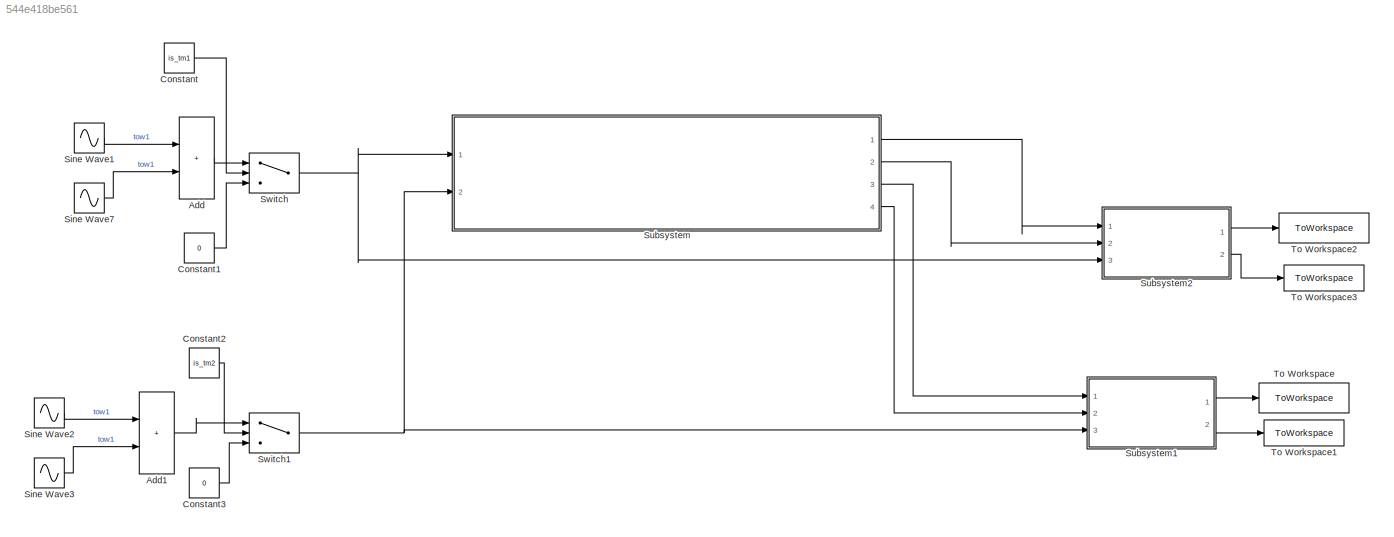
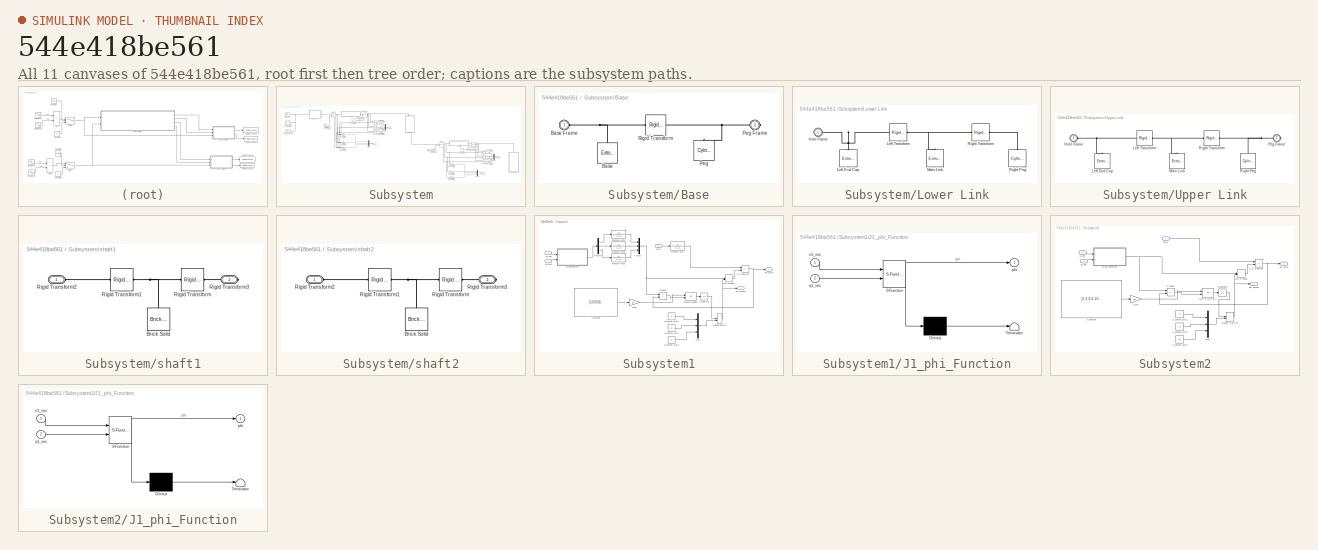
[diagram: thumbnail index - all 11 canvases of the model, root first then tree order]
MODEL slx_544e418be561
KIND model
CONFIG AbsTol = auto
CONFIG EnableMultiTasking = off
CONFIG FixedStep = auto
CONFIG MaxStep = auto
CONFIG MinStep = auto
CONFIG RelTol = 1e-3
CONFIG SampleTimeConstraint = Unconstrained
CONFIG SolverName = VariableStepAuto
CONFIG StartTime = 0.0
CONFIG StopTime = 10.0
BLOCK [Sum] Add
  IconShape = rectangular
  Ports = [2, 1]
BLOCK [Sum] Add1
  IconShape = rectangular
  Ports = [2, 1]
BLOCK [Constant] Constant
  Value = is_tm1
BLOCK [Constant] Constant1
  Value = 0
BLOCK [Constant] Constant2
  Value = is_tm2
BLOCK [Constant] Constant3
  Value = 0
BLOCK [Sin] Sine Wave1
  Frequency = 0.5
  Ports = [0, 1]
  SampleTime = 0
BLOCK [Sin] Sine Wave2
  Amplitude = 0.5
  Frequency = 0.5
  Ports = [0, 1]
  SampleTime = 0
BLOCK [Sin] Sine Wave3
  Amplitude = 0.25
  Frequency = 0.1
  Ports = [0, 1]
  SampleTime = 0
BLOCK [Sin] Sine Wave7
  Amplitude = 0.5
  Frequency = 0.1
  Ports = [0, 1]
  SampleTime = 0
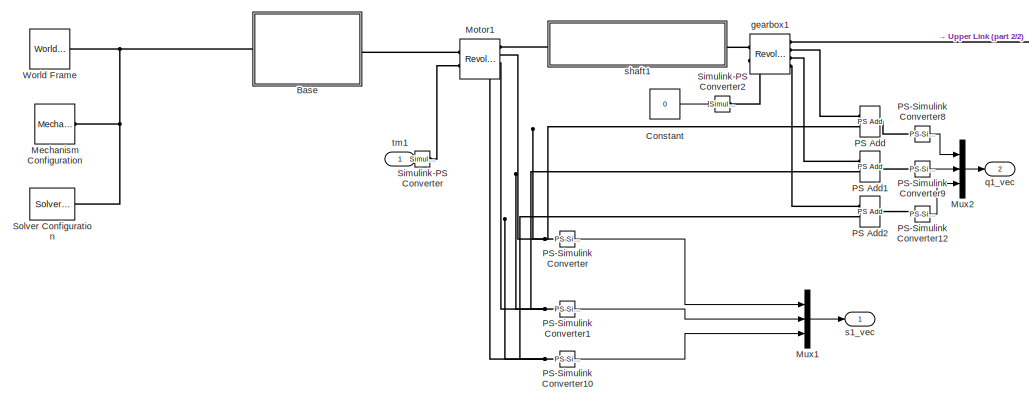
[diagram: Subsystem - part 1/2, top left region]
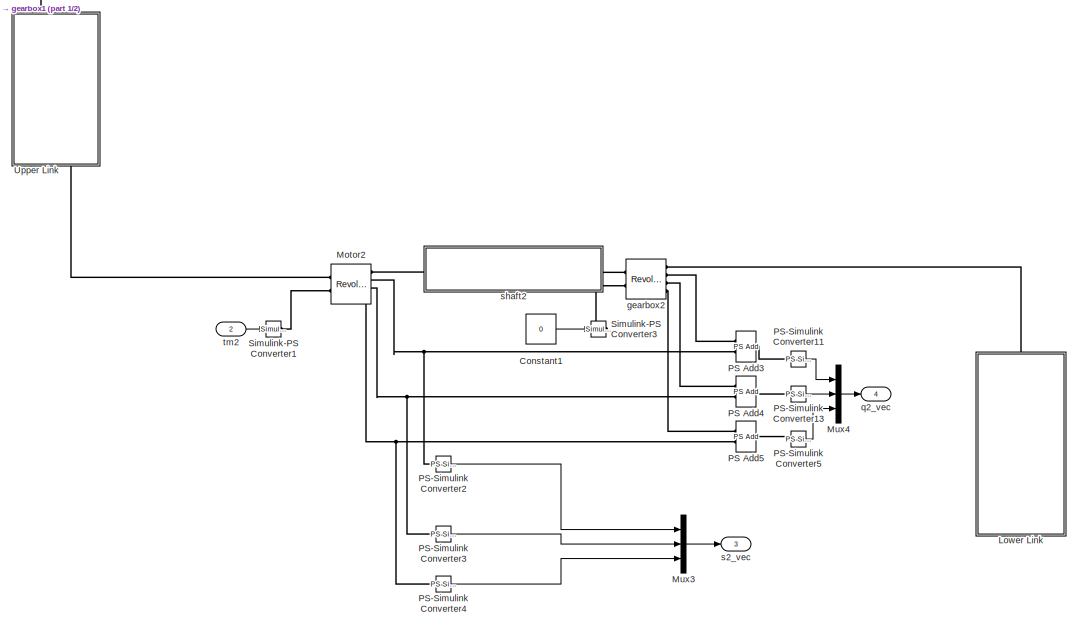
[diagram: Subsystem - part 2/2, right side, full height]
BLOCK [SubSystem] Subsystem
  Ports = [2, 4]
  RequestExecContextInheritance = off
BLOCK [SubSystem] Subsystem/Base
  Ports = [0, 0, 0, 0, 0, 1, 1]
  RequestExecContextInheritance = off
BLOCK [Reference] Subsystem/Base/Base  REF=sm_lib/Body Elements/Extruded Solid
  NameLocation = right
  Ports = [0, 0, 0, 0, 0, 0, 1]
  SourceBlock = sm_lib/Body Elements/Extruded Solid
  SourceProductName = Multibody
  SourceType = Extruded Solid
BLOCK [PMIOPort] Subsystem/Base/Base Frame
  Side = Left
BLOCK [Reference] Subsystem/Base/Peg  REF=sm_lib/Body Elements/Cylindrical Solid
  NameLocation = left
  Ports = [0, 0, 0, 0, 0, 0, 1]
  SourceBlock = sm_lib/Body Elements/Cylindrical Solid
  SourceProductName = Multibody
  SourceType = Cylindrical Solid
BLOCK [PMIOPort] Subsystem/Base/Peg Frame
  Port = 2
  Side = Right
BLOCK [Reference] Subsystem/Base/Rigid Transform  REF=sm_lib/Frames and
Transforms/Rigid
Transform
  Ports = [0, 0, 0, 0, 0, 1, 1]
  SourceBlock = sm_lib/Frames and\nTransforms/Rigid\nTransform
  SourceProductName = Multibody
  SourceType = Rigid\nTransform
BLOCK [Constant] Subsystem/Constant
  Value = 0
BLOCK [Constant] Subsystem/Constant1
  Value = 0
BLOCK [SubSystem] Subsystem/Lower Link
  NameLocation = right
  Ports = [0, 0, 0, 0, 0, 1]
  RequestExecContextInheritance = off
BLOCK [PMIOPort] Subsystem/Lower Link/Hole Frame
  Side = Left
BLOCK [Reference] Subsystem/Lower Link/Left End Cap  REF=sm_lib/Body Elements/Extruded Solid
  NameLocation = right
  Ports = [0, 0, 0, 0, 0, 0, 1]
  SourceBlock = sm_lib/Body Elements/Extruded Solid
  SourceProductName = Multibody
  SourceType = Extruded Solid
BLOCK [Reference] Subsystem/Lower Link/Left Transform  REF=sm_lib/Frames and
Transforms/Rigid
Transform
  Ports = [0, 0, 0, 0, 0, 1, 1]
  SourceBlock = sm_lib/Frames and\nTransforms/Rigid\nTransform
  SourceProductName = Multibody
  SourceType = Rigid\nTransform
BLOCK [Reference] Subsystem/Lower Link/Main Link  REF=sm_lib/Body Elements/Extruded Solid
  NameLocation = right
  Ports = [0, 0, 0, 0, 0, 0, 1]
  SourceBlock = sm_lib/Body Elements/Extruded Solid
  SourceProductName = Multibody
  SourceType = Extruded Solid
BLOCK [Reference] Subsystem/Lower Link/Right Peg  REF=sm_lib/Body Elements/Cylindrical Solid
  NameLocation = right
  Ports = [0, 0, 0, 0, 0, 0, 1]
  SourceBlock = sm_lib/Body Elements/Cylindrical Solid
  SourceProductName = Multibody
  SourceType = Cylindrical Solid
BLOCK [Reference] Subsystem/Lower Link/Right Transform  REF=sm_lib/Frames and
Transforms/Rigid
Transform
  Ports = [0, 0, 0, 0, 0, 1, 1]
  SourceBlock = sm_lib/Frames and\nTransforms/Rigid\nTransform
  SourceProductName = Multibody
  SourceType = Rigid\nTransform
BLOCK [Reference] Subsystem/Mechanism Configuration  REF=sm_lib/Utilities/Mechanism
Configuration
  Ports = [0, 0, 0, 0, 0, 0, 1]
  SourceBlock = sm_lib/Utilities/Mechanism\nConfiguration
  SourceProductName = Multibody
  SourceType = Mechanism\nConfiguration
BLOCK [Reference] Subsystem/Motor1  REF=sm_lib/Joints/Revolute Joint
  Ports = [0, 0, 0, 0, 0, 2, 4]
  SourceBlock = sm_lib/Joints/Revolute Joint
  SourceProductBaseCode = MS
  SourceType = Revolute Joint
BLOCK [Reference] Subsystem/Motor2  REF=sm_lib/Joints/Revolute Joint
  Ports = [0, 0, 0, 0, 0, 2, 4]
  SourceBlock = sm_lib/Joints/Revolute Joint
  SourceProductBaseCode = MS
  SourceType = Revolute Joint
BLOCK [Mux] Subsystem/Mux1
  DisplayOption = bar
  Inputs = 3
  Ports = [3, 1]
BLOCK [Mux] Subsystem/Mux2
  DisplayOption = bar
  Inputs = 3
  Ports = [3, 1]
BLOCK [Mux] Subsystem/Mux3
  DisplayOption = bar
  Inputs = 3
  Ports = [3, 1]
BLOCK [Mux] Subsystem/Mux4
  DisplayOption = bar
  Inputs = 3
  Ports = [3, 1]
BLOCK [Reference] Subsystem/PS Add  REF=fl_lib/Physical Signals/Functions/PS Add
  Ports = [0, 0, 0, 0, 0, 2, 1]
  SourceBlock = fl_lib/Physical Signals/Functions/PS Add
  SourceProductBaseCode = SS
  SourceType = PS Add
BLOCK [Reference] Subsystem/PS Add1  REF=fl_lib/Physical Signals/Functions/PS Add
  Ports = [0, 0, 0, 0, 0, 2, 1]
  SourceBlock = fl_lib/Physical Signals/Functions/PS Add
  SourceProductBaseCode = SS
  SourceType = PS Add
BLOCK [Reference] Subsystem/PS Add2  REF=fl_lib/Physical Signals/Functions/PS Add
  Ports = [0, 0, 0, 0, 0, 2, 1]
  SourceBlock = fl_lib/Physical Signals/Functions/PS Add
  SourceProductBaseCode = SS
  SourceType = PS Add
BLOCK [Reference] Subsystem/PS Add3  REF=fl_lib/Physical Signals/Functions/PS Add
  Ports = [0, 0, 0, 0, 0, 2, 1]
  SourceBlock = fl_lib/Physical Signals/Functions/PS Add
  SourceProductBaseCode = SS
  SourceType = PS Add
BLOCK [Reference] Subsystem/PS Add4  REF=fl_lib/Physical Signals/Functions/PS Add
  Ports = [0, 0, 0, 0, 0, 2, 1]
  SourceBlock = fl_lib/Physical Signals/Functions/PS Add
  SourceProductBaseCode = SS
  SourceType = PS Add
BLOCK [Reference] Subsystem/PS Add5  REF=fl_lib/Physical Signals/Functions/PS Add
  Ports = [0, 0, 0, 0, 0, 2, 1]
  SourceBlock = fl_lib/Physical Signals/Functions/PS Add
  SourceProductBaseCode = SS
  SourceType = PS Add
BLOCK [Reference] Subsystem/PS-Simulink Converter  REF=nesl_utility/PS-Simulink
Converter
  Ports = [0, 1, 0, 0, 0, 1]
  SourceBlock = nesl_utility/PS-Simulink\nConverter
  SourceProductBaseCode = SS
  SourceType = PS-Simulink\nConverter
BLOCK [Reference] Subsystem/PS-Simulink Converter1  REF=nesl_utility/PS-Simulink
Converter
  Ports = [0, 1, 0, 0, 0, 1]
  SourceBlock = nesl_utility/PS-Simulink\nConverter
  SourceProductBaseCode = SS
  SourceType = PS-Simulink\nConverter
BLOCK [Reference] Subsystem/PS-Simulink Converter10  REF=nesl_utility/PS-Simulink
Converter
  NameLocation = left
  Ports = [0, 1, 0, 0, 0, 1]
  SourceBlock = nesl_utility/PS-Simulink\nConverter
  SourceProductBaseCode = SS
  SourceType = PS-Simulink\nConverter
BLOCK [Reference] Subsystem/PS-Simulink Converter11  REF=nesl_utility/PS-Simulink
Converter
  Ports = [0, 1, 0, 0, 0, 1]
  SourceBlock = nesl_utility/PS-Simulink\nConverter
  SourceProductBaseCode = SS
  SourceType = PS-Simulink\nConverter
BLOCK [Reference] Subsystem/PS-Simulink Converter12  REF=nesl_utility/PS-Simulink
Converter
  Ports = [0, 1, 0, 0, 0, 1]
  SourceBlock = nesl_utility/PS-Simulink\nConverter
  SourceProductBaseCode = SS
  SourceType = PS-Simulink\nConverter
BLOCK [Reference] Subsystem/PS-Simulink Converter13  REF=nesl_utility/PS-Simulink
Converter
  Ports = [0, 1, 0, 0, 0, 1]
  SourceBlock = nesl_utility/PS-Simulink\nConverter
  SourceProductBaseCode = SS
  SourceType = PS-Simulink\nConverter
BLOCK [Reference] Subsystem/PS-Simulink Converter2  REF=nesl_utility/PS-Simulink
Converter
  Ports = [0, 1, 0, 0, 0, 1]
  SourceBlock = nesl_utility/PS-Simulink\nConverter
  SourceProductBaseCode = SS
  SourceType = PS-Simulink\nConverter
BLOCK [Reference] Subsystem/PS-Simulink Converter3  REF=nesl_utility/PS-Simulink
Converter
  Ports = [0, 1, 0, 0, 0, 1]
  SourceBlock = nesl_utility/PS-Simulink\nConverter
  SourceProductBaseCode = SS
  SourceType = PS-Simulink\nConverter
BLOCK [Reference] Subsystem/PS-Simulink Converter4  REF=nesl_utility/PS-Simulink
Converter
  NameLocation = left
  Ports = [0, 1, 0, 0, 0, 1]
  SourceBlock = nesl_utility/PS-Simulink\nConverter
  SourceProductBaseCode = SS
  SourceType = PS-Simulink\nConverter
BLOCK [Reference] Subsystem/PS-Simulink Converter5  REF=nesl_utility/PS-Simulink
Converter
  Ports = [0, 1, 0, 0, 0, 1]
  SourceBlock = nesl_utility/PS-Simulink\nConverter
  SourceProductBaseCode = SS
  SourceType = PS-Simulink\nConverter
BLOCK [Reference] Subsystem/PS-Simulink Converter8  REF=nesl_utility/PS-Simulink
Converter
  Ports = [0, 1, 0, 0, 0, 1]
  SourceBlock = nesl_utility/PS-Simulink\nConverter
  SourceProductBaseCode = SS
  SourceType = PS-Simulink\nConverter
BLOCK [Reference] Subsystem/PS-Simulink Converter9  REF=nesl_utility/PS-Simulink
Converter
  Ports = [0, 1, 0, 0, 0, 1]
  SourceBlock = nesl_utility/PS-Simulink\nConverter
  SourceProductBaseCode = SS
  SourceType = PS-Simulink\nConverter
BLOCK [Reference] Subsystem/Simulink-PS Converter  REF=nesl_utility/Simulink-PS
Converter
  Ports = [1, 0, 0, 0, 0, 0, 1]
  SourceBlock = nesl_utility/Simulink-PS\nConverter
  SourceProductBaseCode = SS
  SourceType = Simulink-PS\nConverter
BLOCK [Reference] Subsystem/Simulink-PS Converter1  REF=nesl_utility/Simulink-PS
Converter
  Ports = [1, 0, 0, 0, 0, 0, 1]
  SourceBlock = nesl_utility/Simulink-PS\nConverter
  SourceProductBaseCode = SS
  SourceType = Simulink-PS\nConverter
BLOCK [Reference] Subsystem/Simulink-PS Converter2  REF=nesl_utility/Simulink-PS
Converter
  Ports = [1, 0, 0, 0, 0, 0, 1]
  SourceBlock = nesl_utility/Simulink-PS\nConverter
  SourceProductBaseCode = SS
  SourceType = Simulink-PS\nConverter
BLOCK [Reference] Subsystem/Simulink-PS Converter3  REF=nesl_utility/Simulink-PS
Converter
  Ports = [1, 0, 0, 0, 0, 0, 1]
  SourceBlock = nesl_utility/Simulink-PS\nConverter
  SourceProductBaseCode = SS
  SourceType = Simulink-PS\nConverter
BLOCK [Reference] Subsystem/Solver Configuration  REF=nesl_utility/Solver
Configuration
  Ports = [0, 0, 0, 0, 0, 0, 1]
  SourceBlock = nesl_utility/Solver\nConfiguration
  SourceProductName = Utilities
  SourceType = Solver\nConfiguration
BLOCK [SubSystem] Subsystem/Upper Link
  NameLocation = right
  Ports = [0, 0, 0, 0, 0, 1, 1]
  RequestExecContextInheritance = off
BLOCK [PMIOPort] Subsystem/Upper Link/Hole Frame
  Side = Left
BLOCK [Reference] Subsystem/Upper Link/Left End Cap  REF=sm_lib/Body Elements/Extruded Solid
  NameLocation = right
  Ports = [0, 0, 0, 0, 0, 0, 1]
  SourceBlock = sm_lib/Body Elements/Extruded Solid
  SourceProductName = Multibody
  SourceType = Extruded Solid
BLOCK [Reference] Subsystem/Upper Link/Left Transform  REF=sm_lib/Frames and
Transforms/Rigid
Transform
  Ports = [0, 0, 0, 0, 0, 1, 1]
  SourceBlock = sm_lib/Frames and\nTransforms/Rigid\nTransform
  SourceProductName = Multibody
  SourceType = Rigid\nTransform
BLOCK [Reference] Subsystem/Upper Link/Main Link  REF=sm_lib/Body Elements/Extruded Solid
  NameLocation = right
  Ports = [0, 0, 0, 0, 0, 0, 1]
  SourceBlock = sm_lib/Body Elements/Extruded Solid
  SourceProductName = Multibody
  SourceType = Extruded Solid
BLOCK [PMIOPort] Subsystem/Upper Link/Peg Frame
  Port = 2
  Side = Right
BLOCK [Reference] Subsystem/Upper Link/Right Peg  REF=sm_lib/Body Elements/Cylindrical Solid
  NameLocation = right
  Ports = [0, 0, 0, 0, 0, 0, 1]
  SourceBlock = sm_lib/Body Elements/Cylindrical Solid
  SourceProductName = Multibody
  SourceType = Cylindrical Solid
BLOCK [Reference] Subsystem/Upper Link/Right Transform  REF=sm_lib/Frames and
Transforms/Rigid
Transform
  Ports = [0, 0, 0, 0, 0, 1, 1]
  SourceBlock = sm_lib/Frames and\nTransforms/Rigid\nTransform
  SourceProductName = Multibody
  SourceType = Rigid\nTransform
BLOCK [Reference] Subsystem/World Frame  REF=sm_lib/Frames and
Transforms/World Frame
  Ports = [0, 0, 0, 0, 0, 0, 1]
  SourceBlock = sm_lib/Frames and\nTransforms/World Frame
  SourceProductName = Multibody
  SourceType = World Frame
BLOCK [Reference] Subsystem/gearbox1  REF=sm_lib/Joints/Revolute Joint
  Ports = [0, 0, 0, 0, 0, 2, 4]
  SourceBlock = sm_lib/Joints/Revolute Joint
  SourceProductBaseCode = MS
  SourceType = Revolute Joint
BLOCK [Reference] Subsystem/gearbox2  REF=sm_lib/Joints/Revolute Joint
  Ports = [0, 0, 0, 0, 0, 2, 4]
  SourceBlock = sm_lib/Joints/Revolute Joint
  SourceProductBaseCode = MS
  SourceType = Revolute Joint
BLOCK [Outport] Subsystem/q1_vec
  Port = 2
BLOCK [Outport] Subsystem/q2_vec
  Port = 4
BLOCK [Outport] Subsystem/s1_vec
BLOCK [Outport] Subsystem/s2_vec
  Port = 3
BLOCK [SubSystem] Subsystem/shaft1
  Ports = [0, 0, 0, 0, 0, 1, 1]
  RequestExecContextInheritance = off
BLOCK [Reference] Subsystem/shaft1/Brick Solid  REF=sm_lib/Body Elements/Brick Solid
  Ports = [0, 0, 0, 0, 0, 0, 1]
  SourceBlock = sm_lib/Body Elements/Brick Solid
  SourceProductBaseCode = MS
  SourceType = Brick Solid
BLOCK [Reference] Subsystem/shaft1/Rigid Transform  REF=sm_lib/Frames and
Transforms/Rigid
Transform
  Ports = [0, 0, 0, 0, 0, 1, 1]
  SourceBlock = sm_lib/Frames and\nTransforms/Rigid\nTransform
  SourceProductBaseCode = MS
  SourceType = Rigid\nTransform
BLOCK [Reference] Subsystem/shaft1/Rigid Transform1  REF=sm_lib/Frames and
Transforms/Rigid
Transform
  Ports = [0, 0, 0, 0, 0, 1, 1]
  SourceBlock = sm_lib/Frames and\nTransforms/Rigid\nTransform
  SourceProductBaseCode = MS
  SourceType = Rigid\nTransform
BLOCK [PMIOPort] Subsystem/shaft1/Rigid Transform2
  Side = Left
BLOCK [PMIOPort] Subsystem/shaft1/Rigid Transform3
  Port = 2
  Side = Right
BLOCK [SubSystem] Subsystem/shaft2
  Ports = [0, 0, 0, 0, 0, 1, 1]
  RequestExecContextInheritance = off
BLOCK [Reference] Subsystem/shaft2/Brick Solid  REF=sm_lib/Body Elements/Brick Solid
  Ports = [0, 0, 0, 0, 0, 0, 1]
  SourceBlock = sm_lib/Body Elements/Brick Solid
  SourceProductBaseCode = MS
  SourceType = Brick Solid
BLOCK [Reference] Subsystem/shaft2/Rigid Transform  REF=sm_lib/Frames and
Transforms/Rigid
Transform
  Ports = [0, 0, 0, 0, 0, 1, 1]
  SourceBlock = sm_lib/Frames and\nTransforms/Rigid\nTransform
  SourceProductBaseCode = MS
  SourceType = Rigid\nTransform
BLOCK [Reference] Subsystem/shaft2/Rigid Transform1  REF=sm_lib/Frames and
Transforms/Rigid
Transform
  Ports = [0, 0, 0, 0, 0, 1, 1]
  SourceBlock = sm_lib/Frames and\nTransforms/Rigid\nTransform
  SourceProductBaseCode = MS
  SourceType = Rigid\nTransform
BLOCK [PMIOPort] Subsystem/shaft2/Rigid Transform2
  Side = Left
BLOCK [PMIOPort] Subsystem/shaft2/Rigid Transform3
  Port = 2
  Side = Right
BLOCK [Inport] Subsystem/tm1
BLOCK [Inport] Subsystem/tm2
  Port = 2
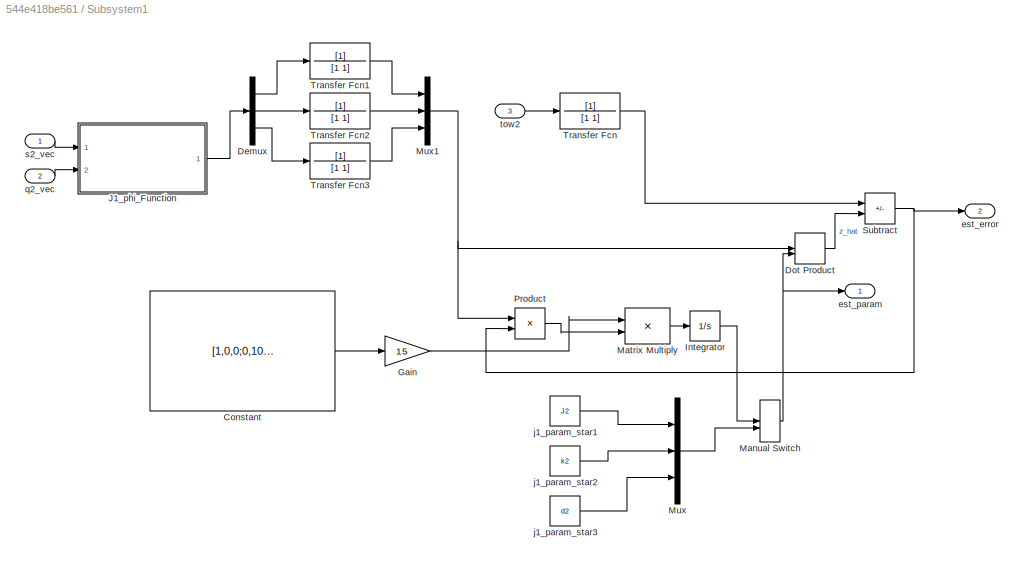
BLOCK [SubSystem] Subsystem1
  Ports = [3, 2]
  RequestExecContextInheritance = off
BLOCK [Constant] Subsystem1/Constant
  Value = [1,0,0;0,100,0;0,0,0.01]
BLOCK [Demux] Subsystem1/Demux
  Outputs = 3
  Ports = [1, 3]
BLOCK [DotProduct] Subsystem1/Dot Product
  OutDataTypeStr = Inherit: Inherit via internal rule
BLOCK [Gain] Subsystem1/Gain
  Gain = 15
BLOCK [Integrator] Subsystem1/Integrator
  InitialCondition = [0.0001;0.0001;0.0001]
  Ports = [1, 1]
BLOCK [SubSystem] Subsystem1/J1_phi_Function
  ErrorFcn = Stateflow.Translate.translate
  PermitHierarchicalResolution = ExplicitOnly
  Ports = [2, 1]
  RequestExecContextInheritance = off
  SFBlockType = MATLAB Function
  TreatAsAtomicUnit = on
BLOCK [Demux] Subsystem1/J1_phi_Function/ Demux 
  Outputs = 1
  Ports = [1, 1]
BLOCK [S-Function] Subsystem1/J1_phi_Function/ SFunction 
  EnableBusSupport = on
  FunctionName = sf_sfun
  PortCounts = [2 2]
  Ports = [2, 2]
  SFcnIsStateOwnerBlock = off
  SFunctionDeploymentMode = off
  Tag = Stateflow S-Function 3
BLOCK [Terminator] Subsystem1/J1_phi_Function/ Terminator 
BLOCK [Outport] Subsystem1/J1_phi_Function/phi
BLOCK [Inport] Subsystem1/J1_phi_Function/q1_vec
  Port = 2
BLOCK [Inport] Subsystem1/J1_phi_Function/s1_vec
BLOCK [ManualSwitch] Subsystem1/Manual Switch
BLOCK [Product] Subsystem1/Matrix Multiply
  Multiplication = Matrix(*)
  Ports = [2, 1]
BLOCK [Mux] Subsystem1/Mux
  DisplayOption = bar
  Inputs = 3
  Ports = [3, 1]
BLOCK [Mux] Subsystem1/Mux1
  DisplayOption = bar
  Inputs = 3
  Ports = [3, 1]
BLOCK [Product] Subsystem1/Product
  Ports = [2, 1]
BLOCK [Sum] Subsystem1/Subtract
  IconShape = rectangular
  Inputs = +-
  Ports = [2, 1]
BLOCK [TransferFcn] Subsystem1/Transfer Fcn
  Denominator = [1 1]
BLOCK [TransferFcn] Subsystem1/Transfer Fcn1
  Denominator = [1 1]
BLOCK [TransferFcn] Subsystem1/Transfer Fcn2
  Denominator = [1 1]
BLOCK [TransferFcn] Subsystem1/Transfer Fcn3
  Denominator = [1 1]
BLOCK [Outport] Subsystem1/est_error
  Port = 2
BLOCK [Outport] Subsystem1/est_param
BLOCK [Constant] Subsystem1/j1_param_star1
  Value = J2
BLOCK [Constant] Subsystem1/j1_param_star2
  Value = k2
BLOCK [Constant] Subsystem1/j1_param_star3
  Value = d2
BLOCK [Inport] Subsystem1/q2_vec
  Port = 2
BLOCK [Inport] Subsystem1/s2_vec
BLOCK [Inport] Subsystem1/tow2
  Port = 3
BLOCK [SubSystem] Subsystem2
  Ports = [3, 2]
  RequestExecContextInheritance = off
BLOCK [Constant] Subsystem2/Constant
  Value = [1,0,0;0,100,0;0,0,0.1]
BLOCK [DotProduct] Subsystem2/Dot Product
  OutDataTypeStr = Inherit: Inherit via internal rule
BLOCK [Gain] Subsystem2/Gain
  Gain = 20
BLOCK [Integrator] Subsystem2/Integrator
  InitialCondition = [0;0;0]
  Ports = [1, 1]
BLOCK [SubSystem] Subsystem2/J1_phi_Function
  ErrorFcn = Stateflow.Translate.translate
  PermitHierarchicalResolution = ExplicitOnly
  Ports = [2, 1]
  RequestExecContextInheritance = off
  SFBlockType = MATLAB Function
  TreatAsAtomicUnit = on
BLOCK [Demux] Subsystem2/J1_phi_Function/ Demux 
  Outputs = 1
  Ports = [1, 1]
BLOCK [S-Function] Subsystem2/J1_phi_Function/ SFunction 
  EnableBusSupport = on
  FunctionName = sf_sfun
  PortCounts = [2 2]
  Ports = [2, 2]
  SFcnIsStateOwnerBlock = off
  SFunctionDeploymentMode = off
  Tag = Stateflow S-Function 4
BLOCK [Terminator] Subsystem2/J1_phi_Function/ Terminator 
BLOCK [Outport] Subsystem2/J1_phi_Function/phi
BLOCK [Inport] Subsystem2/J1_phi_Function/q1_vec
  Port = 2
BLOCK [Inport] Subsystem2/J1_phi_Function/s1_vec
BLOCK [ManualSwitch] Subsystem2/Manual Switch
BLOCK [Product] Subsystem2/Matrix Multiply
  Multiplication = Matrix(*)
  Ports = [2, 1]
BLOCK [Mux] Subsystem2/Mux
  DisplayOption = bar
  Inputs = 3
  Ports = [3, 1]
BLOCK [Product] Subsystem2/Product
  Ports = [2, 1]
BLOCK [Sum] Subsystem2/Subtract
  IconShape = rectangular
  Inputs = +-
  Ports = [2, 1]
BLOCK [Outport] Subsystem2/est_error
  Port = 2
BLOCK [Outport] Subsystem2/est_param
BLOCK [Constant] Subsystem2/j1_param_star1
  Value = J1
BLOCK [Constant] Subsystem2/j1_param_star2
  Value = k1
BLOCK [Constant] Subsystem2/j1_param_star3
  Value = d1
BLOCK [Inport] Subsystem2/q1_vec
  Port = 2
BLOCK [Inport] Subsystem2/s1_vec
BLOCK [Inport] Subsystem2/tow1
  Port = 3
BLOCK [Switch] Switch
  Criteria = u2 > Threshold
  InputSameDT = off
  SaturateOnIntegerOverflow = off
BLOCK [Switch] Switch1
  Criteria = u2 > Threshold
  InputSameDT = off
  SaturateOnIntegerOverflow = off
BLOCK [ToWorkspace] To Workspace
  FixptAsFi = on
  MaxDataPoints = inf
  Ports = [1]
  SampleTime = -1
  SaveFormat = Timeseries
  VariableName = J2_est_param
BLOCK [ToWorkspace] To Workspace1
  FixptAsFi = on
  MaxDataPoints = inf
  Ports = [1]
  SampleTime = -1
  SaveFormat = Timeseries
  VariableName = J2_est_error
BLOCK [ToWorkspace] To Workspace2
  FixptAsFi = on
  MaxDataPoints = inf
  Ports = [1]
  SampleTime = -1
  SaveFormat = Timeseries
  VariableName = J1_est_param
BLOCK [ToWorkspace] To Workspace3
  FixptAsFi = on
  MaxDataPoints = inf
  Ports = [1]
  SampleTime = -1
  SaveFormat = Timeseries
  VariableName = J1_est_error
LINE Add1:1 -> Switch1:1
LINE Add:1 -> Switch:1
LINE Constant1:1 -> Switch:3
LINE Constant2:1 -> Switch1:2
LINE Constant3:1 -> Switch1:3
LINE Constant:1 -> Switch:2
LINE Sine Wave1:1 -> Add:1
LINE Sine Wave2:1 -> Add1:1
LINE Sine Wave3:1 -> Add1:2
LINE Sine Wave7:1 -> Add:2
LINE Subsystem/Constant1:1 -> Subsystem/Simulink-PS Converter3:1
LINE Subsystem/Constant:1 -> Subsystem/Simulink-PS Converter2:1
LINE Subsystem/Mux1:1 -> Subsystem/s1_vec:1
LINE Subsystem/Mux2:1 -> Subsystem/q1_vec:1
LINE Subsystem/Mux3:1 -> Subsystem/s2_vec:1
LINE Subsystem/Mux4:1 -> Subsystem/q2_vec:1
LINE Subsystem/PS-Simulink Converter10:1 -> Subsystem/Mux1:3
LINE Subsystem/PS-Simulink Converter11:1 -> Subsystem/Mux4:1
LINE Subsystem/PS-Simulink Converter12:1 -> Subsystem/Mux2:3
LINE Subsystem/PS-Simulink Converter13:1 -> Subsystem/Mux4:2
LINE Subsystem/PS-Simulink Converter1:1 -> Subsystem/Mux1:2
LINE Subsystem/PS-Simulink Converter2:1 -> Subsystem/Mux3:1
LINE Subsystem/PS-Simulink Converter3:1 -> Subsystem/Mux3:2
LINE Subsystem/PS-Simulink Converter4:1 -> Subsystem/Mux3:3
LINE Subsystem/PS-Simulink Converter5:1 -> Subsystem/Mux4:3
LINE Subsystem/PS-Simulink Converter8:1 -> Subsystem/Mux2:1
LINE Subsystem/PS-Simulink Converter9:1 -> Subsystem/Mux2:2
LINE Subsystem/PS-Simulink Converter:1 -> Subsystem/Mux1:1
LINE Subsystem/tm1:1 -> Subsystem/Simulink-PS Converter:1
LINE Subsystem/tm2:1 -> Subsystem/Simulink-PS Converter1:1
LINE Subsystem1/Constant:1 -> Subsystem1/Gain:1
LINE Subsystem1/Demux:1 -> Subsystem1/Transfer Fcn1:1
LINE Subsystem1/Demux:2 -> Subsystem1/Transfer Fcn2:1
LINE Subsystem1/Demux:3 -> Subsystem1/Transfer Fcn3:1
LINE Subsystem1/Dot Product:1 -> Subsystem1/Subtract:2
LINE Subsystem1/Gain:1 -> Subsystem1/Matrix Multiply:1
LINE Subsystem1/Integrator:1 -> Subsystem1/Manual Switch:1
LINE Subsystem1/J1_phi_Function:1 -> Subsystem1/Demux:1
NET Subsystem1/Manual Switch:1 -> Subsystem1/Dot Product:2, Subsystem1/est_param:1
LINE Subsystem1/Matrix Multiply:1 -> Subsystem1/Integrator:1
NET Subsystem1/Mux1:1 -> Subsystem1/Dot Product:1, Subsystem1/Product:1
LINE Subsystem1/Mux:1 -> Subsystem1/Manual Switch:2
LINE Subsystem1/Product:1 -> Subsystem1/Matrix Multiply:2
NET Subsystem1/Subtract:1 -> Subsystem1/Product:2, Subsystem1/est_error:1
LINE Subsystem1/Transfer Fcn1:1 -> Subsystem1/Mux1:1
LINE Subsystem1/Transfer Fcn2:1 -> Subsystem1/Mux1:2
LINE Subsystem1/Transfer Fcn3:1 -> Subsystem1/Mux1:3
LINE Subsystem1/Transfer Fcn:1 -> Subsystem1/Subtract:1
LINE Subsystem1/j1_param_star1:1 -> Subsystem1/Mux:1
LINE Subsystem1/j1_param_star2:1 -> Subsystem1/Mux:2
LINE Subsystem1/j1_param_star3:1 -> Subsystem1/Mux:3
LINE Subsystem1/q2_vec:1 -> Subsystem1/J1_phi_Function:2
LINE Subsystem1/s2_vec:1 -> Subsystem1/J1_phi_Function:1
LINE Subsystem1/tow2:1 -> Subsystem1/Transfer Fcn:1
LINE Subsystem1:1 -> To Workspace:1
LINE Subsystem1:2 -> To Workspace1:1
LINE Subsystem2/Constant:1 -> Subsystem2/Gain:1
LINE Subsystem2/Dot Product:1 -> Subsystem2/Subtract:2
LINE Subsystem2/Gain:1 -> Subsystem2/Matrix Multiply:1
LINE Subsystem2/Integrator:1 -> Subsystem2/Manual Switch:1
NET Subsystem2/J1_phi_Function:1 -> Subsystem2/Dot Product:1, Subsystem2/Product:1
NET Subsystem2/Manual Switch:1 -> Subsystem2/Dot Product:2, Subsystem2/est_param:1
LINE Subsystem2/Matrix Multiply:1 -> Subsystem2/Integrator:1
LINE Subsystem2/Mux:1 -> Subsystem2/Manual Switch:2
LINE Subsystem2/Product:1 -> Subsystem2/Matrix Multiply:2
NET Subsystem2/Subtract:1 -> Subsystem2/Product:2, Subsystem2/est_error:1
LINE Subsystem2/j1_param_star1:1 -> Subsystem2/Mux:1
LINE Subsystem2/j1_param_star2:1 -> Subsystem2/Mux:2
LINE Subsystem2/j1_param_star3:1 -> Subsystem2/Mux:3
LINE Subsystem2/q1_vec:1 -> Subsystem2/J1_phi_Function:2
LINE Subsystem2/s1_vec:1 -> Subsystem2/J1_phi_Function:1
LINE Subsystem2/tow1:1 -> Subsystem2/Subtract:1
LINE Subsystem2:1 -> To Workspace2:1
LINE Subsystem2:2 -> To Workspace3:1
LINE Subsystem:1 -> Subsystem2:1
LINE Subsystem:2 -> Subsystem2:2
LINE Subsystem:3 -> Subsystem1:1
LINE Subsystem:4 -> Subsystem1:2
NET Switch1:1 -> Subsystem1:3, Subsystem:2
NET Switch:1 -> Subsystem2:3, Subsystem:1
PNET net1: Subsystem/Base/Base Frame:RConn1 -- Subsystem/Base/Base:RConn1 -- Subsystem/Base/Rigid Transform:LConn1
PNET net2: Subsystem/Base/Peg Frame:RConn1 -- Subsystem/Base/Peg:RConn1 -- Subsystem/Base/Rigid Transform:RConn1
PNET net3: Subsystem/Base:LConn1 -- Subsystem/Mechanism Configuration:RConn1 -- Subsystem/Solver Configuration:RConn1 -- Subsystem/World Frame:RConn1
PLINE Subsystem/Base:RConn1 -- Subsystem/Motor1:LConn1
PNET net4: Subsystem/Lower Link/Hole Frame:RConn1 -- Subsystem/Lower Link/Left End Cap:RConn1 -- Subsystem/Lower Link/Left Transform:RConn1
PNET net5: Subsystem/Lower Link/Left Transform:LConn1 -- Subsystem/Lower Link/Main Link:RConn1 -- Subsystem/Lower Link/Right Transform:LConn1
PLINE Subsystem/Lower Link/Right Peg:RConn1 -- Subsystem/Lower Link/Right Transform:RConn1
PLINE Subsystem/Lower Link:LConn1 -- Subsystem/gearbox2:RConn1
PLINE Subsystem/Motor1:LConn2 -- Subsystem/Simulink-PS Converter:RConn1
PLINE Subsystem/Motor1:RConn1 -- Subsystem/shaft1:LConn1
PNET net6: Subsystem/Motor1:RConn2 -- Subsystem/PS Add:LConn2 -- Subsystem/PS-Simulink Converter:LConn1
PNET net7: Subsystem/Motor1:RConn3 -- Subsystem/PS Add1:LConn2 -- Subsystem/PS-Simulink Converter1:LConn1
PNET net8: Subsystem/Motor1:RConn4 -- Subsystem/PS Add2:LConn2 -- Subsystem/PS-Simulink Converter10:LConn1
PLINE Subsystem/Motor2:LConn1 -- Subsystem/Upper Link:RConn1
PLINE Subsystem/Motor2:LConn2 -- Subsystem/Simulink-PS Converter1:RConn1
PLINE Subsystem/Motor2:RConn1 -- Subsystem/shaft2:LConn1
PNET net9: Subsystem/Motor2:RConn2 -- Subsystem/PS Add3:LConn2 -- Subsystem/PS-Simulink Converter2:LConn1
PNET net10: Subsystem/Motor2:RConn3 -- Subsystem/PS Add4:LConn2 -- Subsystem/PS-Simulink Converter3:LConn1
PNET net11: Subsystem/Motor2:RConn4 -- Subsystem/PS Add5:LConn2 -- Subsystem/PS-Simulink Converter4:LConn1
PLINE Subsystem/PS Add1:LConn1 -- Subsystem/gearbox1:RConn3
PLINE Subsystem/PS Add1:RConn1 -- Subsystem/PS-Simulink Converter9:LConn1
PLINE Subsystem/PS Add2:LConn1 -- Subsystem/gearbox1:RConn4
PLINE Subsystem/PS Add2:RConn1 -- Subsystem/PS-Simulink Converter12:LConn1
PLINE Subsystem/PS Add3:LConn1 -- Subsystem/gearbox2:RConn2
PLINE Subsystem/PS Add3:RConn1 -- Subsystem/PS-Simulink Converter11:LConn1
PLINE Subsystem/PS Add4:LConn1 -- Subsystem/gearbox2:RConn3
PLINE Subsystem/PS Add4:RConn1 -- Subsystem/PS-Simulink Converter13:LConn1
PLINE Subsystem/PS Add5:LConn1 -- Subsystem/gearbox2:RConn4
PLINE Subsystem/PS Add5:RConn1 -- Subsystem/PS-Simulink Converter5:LConn1
PLINE Subsystem/PS Add:LConn1 -- Subsystem/gearbox1:RConn2
PLINE Subsystem/PS Add:RConn1 -- Subsystem/PS-Simulink Converter8:LConn1
PLINE Subsystem/Simulink-PS Converter2:RConn1 -- Subsystem/gearbox1:LConn2
PLINE Subsystem/Simulink-PS Converter3:RConn1 -- Subsystem/gearbox2:LConn2
PNET net12: Subsystem/Upper Link/Hole Frame:RConn1 -- Subsystem/Upper Link/Left End Cap:RConn1 -- Subsystem/Upper Link/Left Transform:RConn1
PNET net13: Subsystem/Upper Link/Left Transform:LConn1 -- Subsystem/Upper Link/Main Link:RConn1 -- Subsystem/Upper Link/Right Transform:LConn1
PNET net14: Subsystem/Upper Link/Peg Frame:RConn1 -- Subsystem/Upper Link/Right Peg:RConn1 -- Subsystem/Upper Link/Right Transform:RConn1
PLINE Subsystem/Upper Link:LConn1 -- Subsystem/gearbox1:RConn1
PLINE Subsystem/gearbox1:LConn1 -- Subsystem/shaft1:RConn1
PLINE Subsystem/gearbox2:LConn1 -- Subsystem/shaft2:RConn1
PNET net15: Subsystem/shaft1/Brick Solid:RConn1 -- Subsystem/shaft1/Rigid Transform1:LConn1 -- Subsystem/shaft1/Rigid Transform:LConn1
PLINE Subsystem/shaft1/Rigid Transform1:RConn1 -- Subsystem/shaft1/Rigid Transform2:RConn1
PLINE Subsystem/shaft1/Rigid Transform3:RConn1 -- Subsystem/shaft1/Rigid Transform:RConn1
PNET net16: Subsystem/shaft2/Brick Solid:RConn1 -- Subsystem/shaft2/Rigid Transform1:LConn1 -- Subsystem/shaft2/Rigid Transform:LConn1
PLINE Subsystem/shaft2/Rigid Transform1:RConn1 -- Subsystem/shaft2/Rigid Transform2:RConn1
PLINE Subsystem/shaft2/Rigid Transform3:RConn1 -- Subsystem/shaft2/Rigid Transform:RConn1
note: NET lines group one-source signal fan-out (src -> all destinations, sorted); 1:1 wires keep LINE; PNET lines group multi-terminal physical nets as a canonical sorted terminal list (undirected conserving connections); 2-terminal nets keep the pairwise PLINE form
CHART Subsystem1/J1_phi_Function states=1 transitions=1
  STATE_LABEL 'eML_blk_kernel()'
  STATE_LABEL 'SCRIPT:\nfunction phi = J2_phi(s1_vec,q1_vec)\ns1 = s1_vec(1);\ns1_d = s1_vec(2);\ns1_dd = s1_vec(3);\nq1 = q1_vec(1);\nq1_d = q1_vec(2);\nq1_dd = q1_vec(3);\n\nphi1 = s1_dd;\nphi2 = s1-q1;\nphi3 = s1_d-q1_d;\n\nphi = [phi1;phi2;phi3];\n'
CHART Subsystem2/J1_phi_Function states=1 transitions=1
  STATE_LABEL 'eML_blk_kernel()'
  STATE_LABEL 'SCRIPT:\nfunction phi = J1_phi(s1_vec,q1_vec)\ns1 = s1_vec(1);\ns1_d = s1_vec(2);\ns1_dd = s1_vec(3);\nq1 = q1_vec(1);\nq1_d = q1_vec(2);\nq1_dd = q1_vec(3);\n\nphi1 = s1_dd;\nphi2 = s1-q1;\nphi3 = s1_d-q1_d;\n\nphi = [phi1;phi2;phi3];\n'
CHART  states=0 transitions=0
CHART  states=0 transitions=0
